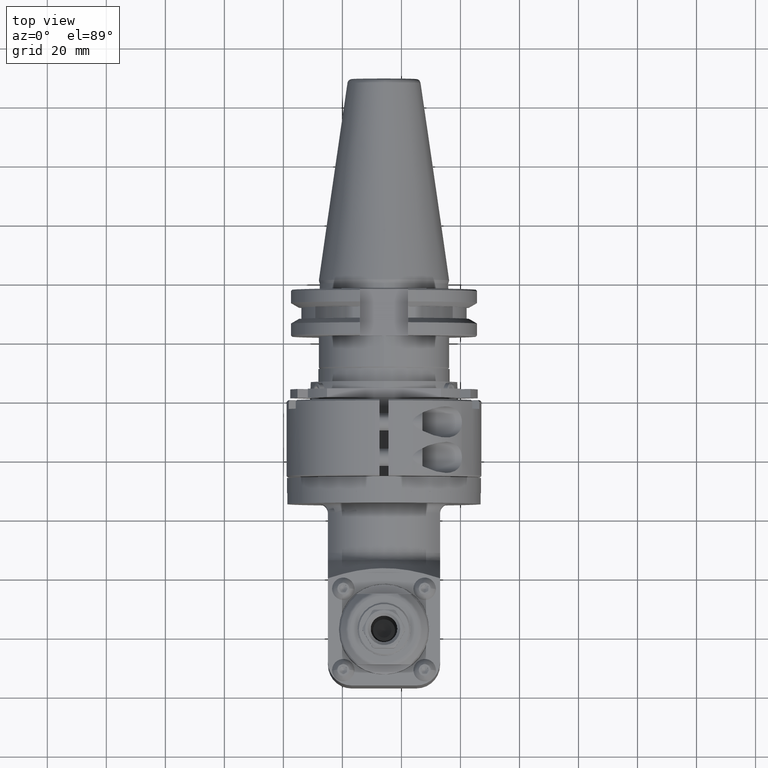
[diagram: clean part render]
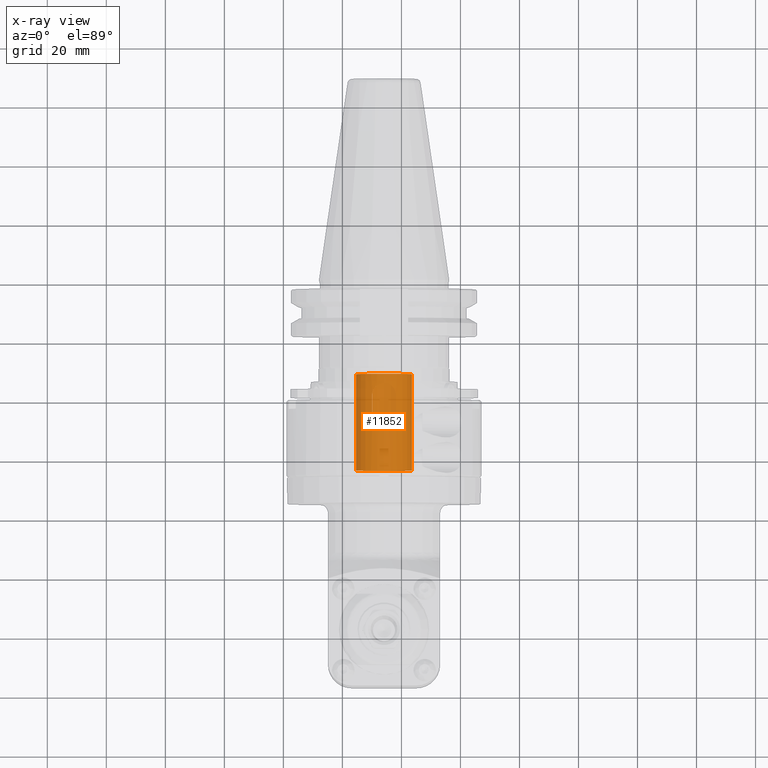
[diagram: x-ray — body ghosted, one internal face saturated and labeled with its STEP entity id]
A machine part, top view, then the same camera in x-ray: the body is ghosted and one INTERNAL B-rep face — a face not visible from any outside direction — is saturated and labeled: STEP entity #11852.
In plain terms, the highlighted cylindrical surface (bore or boss wall) has radius 9.5 mm, axis along (0, 1, 0).
Its self-contained STEP definition (entity closure, byte-faithful):
#381=B_SPLINE_CURVE_WITH_KNOTS('',3,(#20553,#20554,#20555,#20556,#20557,
#20558,#20559,#20560,#20561,#20562),.UNSPECIFIED.,.F.,.F.,(4,2,2,2,4),(0.611073018932007,
0.763744583120584,0.916416147309161,1.06928109258659,1.22214603786401),
 .UNSPECIFIED.);
#382=B_SPLINE_CURVE_WITH_KNOTS('',3,(#20566,#20567,#20568,#20569,#20570,
#20571,#20572,#20573,#20574,#20575),.UNSPECIFIED.,.F.,.F.,(4,2,2,2,4),(-1.83321905679602,
-1.68054749260744,-1.52787592841887,-1.37501098314144,-1.22214603786401),
 .UNSPECIFIED.);
#383=B_SPLINE_CURVE_WITH_KNOTS('',3,(#20578,#20579,#20580,#20581,#20582,
#20583,#20584,#20585,#20586,#20587),.UNSPECIFIED.,.F.,.F.,(4,2,2,2,4),(-2.44429207572803,
-2.2914271304506,-2.13856218517318,-1.9858906209846,-1.83321905679602),
 .UNSPECIFIED.);
#384=B_SPLINE_CURVE_WITH_KNOTS('',3,(#20590,#20591,#20592,#20593,#20594,
#20595,#20596,#20597,#20598,#20599),.UNSPECIFIED.,.F.,.F.,(4,2,2,2,4),(0.,
0.152864945277426,0.305729890554852,0.458401454743429,0.611073018932007),
 .UNSPECIFIED.);
#1164=LINE('',#20551,#2041);
#1165=LINE('',#20564,#2042);
#1166=LINE('',#20576,#2043);
#1167=LINE('',#20589,#2044);
#2041=VECTOR('',#16088,9.5);
#2042=VECTOR('',#16089,5.999999999984);
#2043=VECTOR('',#16090,9.5);
#2044=VECTOR('',#16091,6.);
#2357=CYLINDRICAL_SURFACE('',#13084,9.5);
#3066=FACE_OUTER_BOUND('',#3882,.T.);
#3882=EDGE_LOOP('',(#10081,#10082,#10083,#10084,#10085,#10086,#10087,#10088,
#10089,#10090,#10091,#10092,#10093));
#4558=CIRCLE('',#13082,9.5);
#4559=CIRCLE('',#13083,9.5);
#4560=CIRCLE('',#13085,9.5);
#5589=VERTEX_POINT('',#20542);
#5590=VERTEX_POINT('',#20543);
#5591=VERTEX_POINT('',#20548);
#5592=VERTEX_POINT('',#20550);
#5593=VERTEX_POINT('',#20552);
#5594=VERTEX_POINT('',#20563);
#5595=VERTEX_POINT('',#20565);
#5596=VERTEX_POINT('',#20577);
#5597=VERTEX_POINT('',#20588);
#7138=EDGE_CURVE('',#5589,#5590,#4558,.T.);
#7139=EDGE_CURVE('',#5590,#5589,#4559,.T.);
#7141=EDGE_CURVE('',#5591,#5591,#4560,.T.);
#7142=EDGE_CURVE('',#5591,#5592,#1164,.T.);
#7143=EDGE_CURVE('',#5592,#5593,#381,.T.);
#7144=EDGE_CURVE('',#5593,#5594,#1165,.T.);
#7145=EDGE_CURVE('',#5594,#5595,#382,.F.);
#7146=EDGE_CURVE('',#5595,#5590,#1166,.T.);
#7147=EDGE_CURVE('',#5595,#5596,#383,.F.);
#7148=EDGE_CURVE('',#5596,#5597,#1167,.T.);
#7149=EDGE_CURVE('',#5597,#5592,#384,.T.);
#10081=ORIENTED_EDGE('',*,*,#7141,.F.);
#10082=ORIENTED_EDGE('',*,*,#7142,.T.);
#10083=ORIENTED_EDGE('',*,*,#7143,.T.);
#10084=ORIENTED_EDGE('',*,*,#7144,.T.);
#10085=ORIENTED_EDGE('',*,*,#7145,.T.);
#10086=ORIENTED_EDGE('',*,*,#7146,.T.);
#10087=ORIENTED_EDGE('',*,*,#7138,.F.);
#10088=ORIENTED_EDGE('',*,*,#7139,.F.);
#10089=ORIENTED_EDGE('',*,*,#7146,.F.);
#10090=ORIENTED_EDGE('',*,*,#7147,.T.);
#10091=ORIENTED_EDGE('',*,*,#7148,.T.);
#10092=ORIENTED_EDGE('',*,*,#7149,.T.);
#10093=ORIENTED_EDGE('',*,*,#7142,.F.);
#11852=ADVANCED_FACE('',(#3066),#2357,.F.);
#13082=AXIS2_PLACEMENT_3D('',#20544,#16079,#16080);
#13083=AXIS2_PLACEMENT_3D('',#20545,#16081,#16082);
#13084=AXIS2_PLACEMENT_3D('',#20547,#16084,#16085);
#13085=AXIS2_PLACEMENT_3D('',#20549,#16086,#16087);
#16079=DIRECTION('center_axis',(0.,-1.,0.));
#16080=DIRECTION('ref_axis',(0.,0.,-1.));
#16081=DIRECTION('center_axis',(0.,-1.,0.));
#16082=DIRECTION('ref_axis',(0.,0.,-1.));
#16084=DIRECTION('center_axis',(0.,1.,0.));
#16085=DIRECTION('ref_axis',(0.,0.,-1.));
#16086=DIRECTION('center_axis',(0.,1.,0.));
#16087=DIRECTION('ref_axis',(0.,0.,1.));
#16088=DIRECTION('',(0.,1.,0.));
#16089=DIRECTION('',(0.,1.,0.));
#16090=DIRECTION('',(0.,1.,0.));
#16091=DIRECTION('',(0.,-1.,0.));
#20542=CARTESIAN_POINT('',(1.648681191568E-13,36.13397459622,-74.5));
#20543=CARTESIAN_POINT('',(1.6603153361599E-13,36.13397459622,-55.5));
#20544=CARTESIAN_POINT('Origin',(1.648681191568E-13,36.13397459622,-65.));
#20545=CARTESIAN_POINT('Origin',(1.648681191568E-13,36.13397459622,-65.));
#20547=CARTESIAN_POINT('Origin',(1.648681191568E-13,-9.0000024,-65.));
#20548=CARTESIAN_POINT('',(1.648681191568E-13,3.5,-55.5));
#20549=CARTESIAN_POINT('Origin',(1.648681191568E-13,3.5,-65.));
#20550=CARTESIAN_POINT('',(1.6565799320353E-13,19.,-55.5));
#20551=CARTESIAN_POINT('',(1.6603153361599E-13,-9.0000024,-55.5));
#20552=CARTESIAN_POINT('',(4.00000000000017,22.99999999998,-56.38315603019));
#20553=CARTESIAN_POINT('Ctrl Pts',(1.65145674912992E-13,19.,-55.5));
#20554=CARTESIAN_POINT('Ctrl Pts',(0.50890521396209,19.,-55.5));
#20555=CARTESIAN_POINT('Ctrl Pts',(1.04755429554466,19.1029898727392,-55.5447825003432));
#20556=CARTESIAN_POINT('Ctrl Pts',(2.03138783979636,19.5132363409626,-55.7063477916657));
#20557=CARTESIAN_POINT('Ctrl Pts',(2.47702020915113,19.8201659596586,-55.8212272835674));
#20558=CARTESIAN_POINT('Ctrl Pts',(3.18027914911037,20.5234248996178,-56.0405543863868));
#20559=CARTESIAN_POINT('Ctrl Pts',(3.48687315200712,20.9688920978107,-56.1602482308029));
#20560=CARTESIAN_POINT('Ctrl Pts',(3.89686014090278,21.9520686593089,-56.3331677888983));
#20561=CARTESIAN_POINT('Ctrl Pts',(4.00000000000017,22.4904501824086,-56.3831560301929));
#20562=CARTESIAN_POINT('Ctrl Pts',(4.00000000000017,23.,-56.3831560301929));
#20563=CARTESIAN_POINT('',(4.00000000000017,28.99999999997,-56.38315603019));
#20564=CARTESIAN_POINT('',(4.00000000000017,22.99999999998,-56.38315603019));
#20565=CARTESIAN_POINT('',(1.65866160020647E-13,33.,-55.5));
#20566=CARTESIAN_POINT('Ctrl Pts',(1.64868119156836E-13,33.,-55.5));
#20567=CARTESIAN_POINT('Ctrl Pts',(0.508905213962089,33.,-55.5));
#20568=CARTESIAN_POINT('Ctrl Pts',(1.04755429554466,32.8970101272608,-55.5447825003432));
#20569=CARTESIAN_POINT('Ctrl Pts',(2.03138783979635,32.4867636590374,-55.7063477916657));
#20570=CARTESIAN_POINT('Ctrl Pts',(2.47702020915113,32.1798340403414,-55.8212272835674));
#20571=CARTESIAN_POINT('Ctrl Pts',(3.18027914911038,31.4765751003822,-56.0405543863868));
#20572=CARTESIAN_POINT('Ctrl Pts',(3.48687315200711,31.0311079021893,-56.1602482308029));
#20573=CARTESIAN_POINT('Ctrl Pts',(3.89686014090278,30.0479313406911,-56.3331677888983));
#20574=CARTESIAN_POINT('Ctrl Pts',(4.00000000000017,29.5095498175914,-56.3831560301929));
#20575=CARTESIAN_POINT('Ctrl Pts',(4.00000000000017,29.,-56.3831560301929));
#20576=CARTESIAN_POINT('',(1.6603153361599E-13,-9.0000024,-55.5));
#20577=CARTESIAN_POINT('',(-3.99999999999984,29.,-56.38315603019));
#20578=CARTESIAN_POINT('Ctrl Pts',(-3.99999999999984,29.,-56.383156030193));
#20579=CARTESIAN_POINT('Ctrl Pts',(-3.99999999999984,29.5095498175914,-56.383156030193));
#20580=CARTESIAN_POINT('Ctrl Pts',(-3.89686014090245,30.0479313406911,-56.3331677888983));
#20581=CARTESIAN_POINT('Ctrl Pts',(-3.48687315200679,31.0311079021893,-56.1602482308029));
#20582=CARTESIAN_POINT('Ctrl Pts',(-3.18027914911005,31.4765751003822,-56.0405543863868));
#20583=CARTESIAN_POINT('Ctrl Pts',(-2.4770202091508,32.1798340403414,-55.8212272835674));
#20584=CARTESIAN_POINT('Ctrl Pts',(-2.03138783979602,32.4867636590374,-55.7063477916657));
#20585=CARTESIAN_POINT('Ctrl Pts',(-1.04755429554432,32.8970101272608,-55.5447825003432));
#20586=CARTESIAN_POINT('Ctrl Pts',(-0.508905213961758,33.,-55.5));
#20587=CARTESIAN_POINT('Ctrl Pts',(1.65700786425305E-13,33.,-55.5));
#20588=CARTESIAN_POINT('',(-3.99999999999984,23.,-56.38315603019));
#20589=CARTESIAN_POINT('',(-3.99999999999984,29.,-56.38315603019));
#20590=CARTESIAN_POINT('Ctrl Pts',(-3.99999999999983,23.,-56.383156030193));
#20591=CARTESIAN_POINT('Ctrl Pts',(-3.99999999999983,22.4904501824086,-56.383156030193));
#20592=CARTESIAN_POINT('Ctrl Pts',(-3.89686014090245,21.9520686593089,-56.3331677888983));
#20593=CARTESIAN_POINT('Ctrl Pts',(-3.48687315200679,20.9688920978107,-56.1602482308029));
#20594=CARTESIAN_POINT('Ctrl Pts',(-3.18027914911005,20.5234248996178,-56.0405543863868));
#20595=CARTESIAN_POINT('Ctrl Pts',(-2.4770202091508,19.8201659596586,-55.8212272835674));
#20596=CARTESIAN_POINT('Ctrl Pts',(-2.03138783979603,19.5132363409626,-55.7063477916657));
#20597=CARTESIAN_POINT('Ctrl Pts',(-1.04755429554433,19.1029898727392,-55.5447825003432));
#20598=CARTESIAN_POINT('Ctrl Pts',(-0.50890521396176,19.,-55.5));
#20599=CARTESIAN_POINT('Ctrl Pts',(1.65006897034914E-13,19.,-55.5));